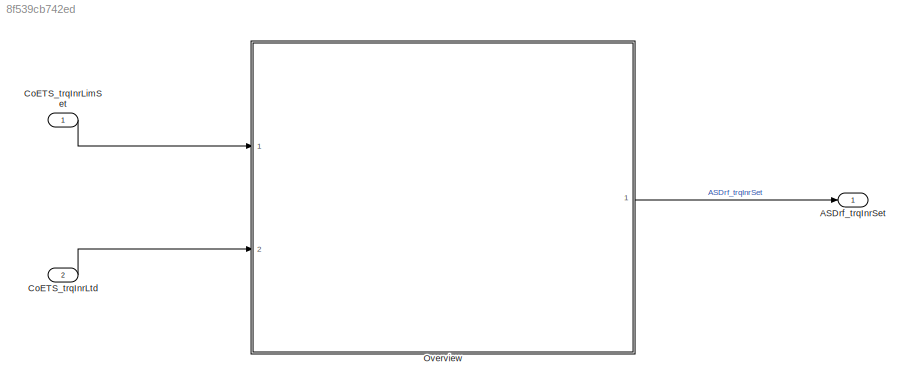
MODEL slx_8f539cb742ed
KIND model
CONFIG AbsTol = auto
CONFIG EnableMultiTasking = off
CONFIG FixedStep = 0.001
CONFIG MaxStep = auto
CONFIG MinStep = auto
CONFIG RelTol = 1e-3
CONFIG SampleTimeConstraint = Unconstrained
CONFIG Solver = FixedStepDiscrete
CONFIG SolverName = FixedStepDiscrete
CONFIG StartTime = 0.0
CONFIG StopTime = Inf
BLOCK [Outport] ASDrf_trqInrSet
  IconDisplay = Port number
BLOCK [Inport] CoETS_trqInrLimSet
  Description = Engine coordinator state
  IconDisplay = Port number
  OutDataTypeStr = Torq
  OutMax = 3000
  OutMin = -3000
  PortDimensions = [1 1]
BLOCK [Inport] CoETS_trqInrLtd
  Description = Vehicle speed
  IconDisplay = Port number
  OutDataTypeStr = Torq
  OutMax = 3000
  OutMin = -3000
  Port = 2
  PortDimensions = [1 1]
  Unit = km/h
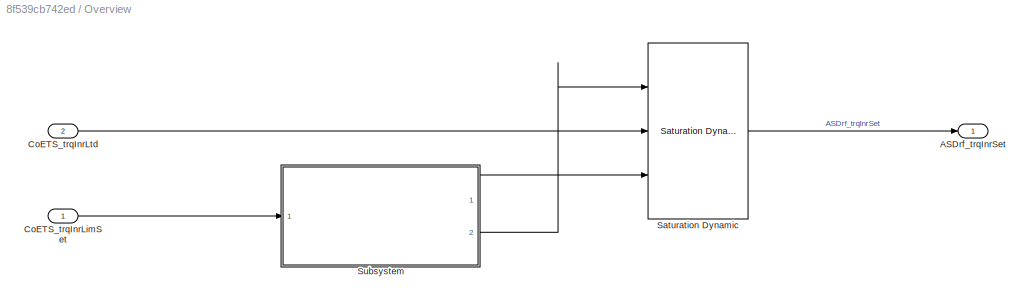
BLOCK [SubSystem] Overview
  Ports = [2, 1]
  RequestExecContextInheritance = off
BLOCK [Outport] Overview/ASDrf_trqInrSet
  Description = ASD reference filter torque output
  IconDisplay = Port number
  OutMax = 3000
  OutMin = -3000
  Tag = Nm
BLOCK [Inport] Overview/CoETS_trqInrLimSet
  Description = Limitation torque without the part of the speed governor
  IconDisplay = Port number
  OutMax = 3000
  OutMin = -3000
  Tag = Nm
BLOCK [Inport] Overview/CoETS_trqInrLtd
  Description = inner torque set value after limitation, before AS
  IconDisplay = Port number
  OutMax = 3000
  OutMin = -3000
  Port = 2
  Tag = Nm
BLOCK [Reference] Overview/Saturation Dynamic  REF=simulink/Discontinuities/Saturation
Dynamic
  Ports = [3, 1]
  SourceBlock = simulink/Discontinuities/Saturation\nDynamic
  SourceProductBaseCode = SL
  SourceProductName = Simulink
  SourceType = Saturation Dynamic
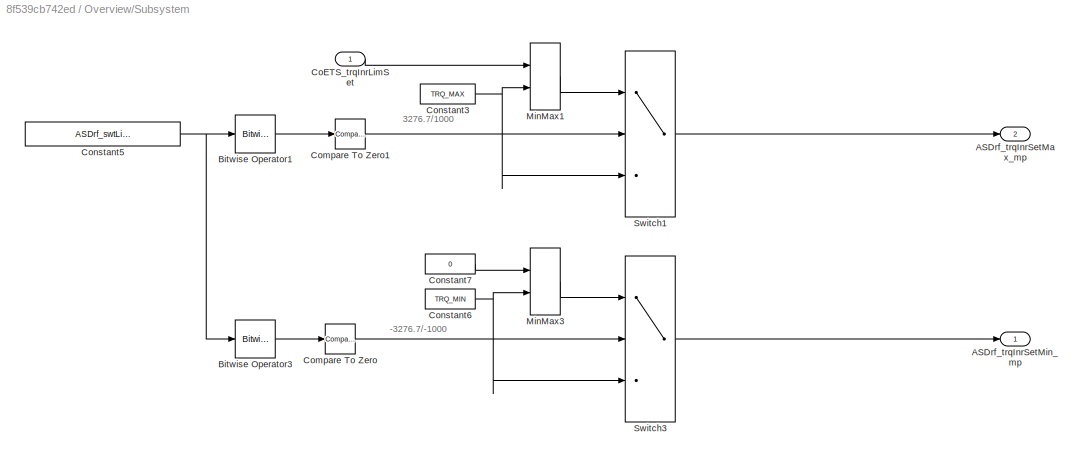
BLOCK [SubSystem] Overview/Subsystem
  Ports = [1, 2]
  RequestExecContextInheritance = off
BLOCK [Outport] Overview/Subsystem/ASDrf_trqInrSetMax_mp
  IconDisplay = Port number
  Port = 2
BLOCK [Outport] Overview/Subsystem/ASDrf_trqInrSetMin_mp
  IconDisplay = Port number
BLOCK [Reference] Overview/Subsystem/Bitwise Operator1  REF=simulink/Logic and Bit
Operations/Bitwise
Operator
  Ports = [1, 1]
  SourceBlock = simulink/Logic and Bit\nOperations/Bitwise\nOperator
  SourceProductBaseCode = SL
  SourceProductName = Simulink
  SourceType = Bitwise Operator
BLOCK [Reference] Overview/Subsystem/Bitwise Operator3  REF=simulink/Logic and Bit
Operations/Bitwise
Operator
  Ports = [1, 1]
  SourceBlock = simulink/Logic and Bit\nOperations/Bitwise\nOperator
  SourceProductBaseCode = SL
  SourceProductName = Simulink
  SourceType = Bitwise Operator
BLOCK [Inport] Overview/Subsystem/CoETS_trqInrLimSet
  IconDisplay = Port number
BLOCK [Reference] Overview/Subsystem/Compare To Zero  REF=simulink/Logic and Bit
Operations/Compare
To Zero
  Ports = [1, 1]
  SourceBlock = simulink/Logic and Bit\nOperations/Compare\nTo Zero
  SourceProductBaseCode = SL
  SourceProductName = Simulink
  SourceType = Compare To Zero
BLOCK [Reference] Overview/Subsystem/Compare To Zero1  REF=simulink/Logic and Bit
Operations/Compare
To Zero
  Ports = [1, 1]
  SourceBlock = simulink/Logic and Bit\nOperations/Compare\nTo Zero
  SourceProductBaseCode = SL
  SourceProductName = Simulink
  SourceType = Compare To Zero
BLOCK [Constant] Overview/Subsystem/Constant3
  OutDataTypeStr = Inherit: Inherit via back propagation
  Value = TRQ_MAX
BLOCK [Constant] Overview/Subsystem/Constant5
  SampleTime = -1
  Value = ASDrf_swtLim_C
BLOCK [Constant] Overview/Subsystem/Constant6
  OutDataTypeStr = Inherit: Inherit via back propagation
  Value = TRQ_MIN
BLOCK [Constant] Overview/Subsystem/Constant7
  OutDataTypeStr = Inherit: Inherit via back propagation
  Value = 0
BLOCK [MinMax] Overview/Subsystem/MinMax1
  Inputs = 2
  Ports = [2, 1]
  SaturateOnIntegerOverflow = off
BLOCK [MinMax] Overview/Subsystem/MinMax3
  Function = max
  Inputs = 2
  Ports = [2, 1]
BLOCK [Switch] Overview/Subsystem/Switch1
  Criteria = u2 ~= 0
  SaturateOnIntegerOverflow = off
BLOCK [Switch] Overview/Subsystem/Switch3
  Criteria = u2 ~= 0
  SaturateOnIntegerOverflow = off
ANNOTATION Overview/Subsystem: -3276.7/-1000
ANNOTATION Overview/Subsystem: 3276.7/1000
LINE CoETS_trqInrLimSet:1 -> Overview:1
LINE CoETS_trqInrLtd:1 -> Overview:2
LINE Overview/CoETS_trqInrLimSet:1 -> Overview/Subsystem:1
LINE Overview/CoETS_trqInrLtd:1 -> Overview/Saturation Dynamic:2
LINE Overview/Saturation Dynamic:1 -> Overview/ASDrf_trqInrSet:1
LINE Overview/Subsystem/Bitwise Operator1:1 -> Overview/Subsystem/Compare To Zero1:1
LINE Overview/Subsystem/Bitwise Operator3:1 -> Overview/Subsystem/Compare To Zero:1
LINE Overview/Subsystem/CoETS_trqInrLimSet:1 -> Overview/Subsystem/MinMax1:1
LINE Overview/Subsystem/Compare To Zero1:1 -> Overview/Subsystem/Switch1:2
LINE Overview/Subsystem/Compare To Zero:1 -> Overview/Subsystem/Switch3:2
NET Overview/Subsystem/Constant3:1 -> Overview/Subsystem/MinMax1:2, Overview/Subsystem/Switch1:3
NET Overview/Subsystem/Constant5:1 -> Overview/Subsystem/Bitwise Operator1:1, Overview/Subsystem/Bitwise Operator3:1
NET Overview/Subsystem/Constant6:1 -> Overview/Subsystem/MinMax3:2, Overview/Subsystem/Switch3:3
LINE Overview/Subsystem/Constant7:1 -> Overview/Subsystem/MinMax3:1
LINE Overview/Subsystem/MinMax1:1 -> Overview/Subsystem/Switch1:1
LINE Overview/Subsystem/MinMax3:1 -> Overview/Subsystem/Switch3:1
LINE Overview/Subsystem/Switch1:1 -> Overview/Subsystem/ASDrf_trqInrSetMax_mp:1
LINE Overview/Subsystem/Switch3:1 -> Overview/Subsystem/ASDrf_trqInrSetMin_mp:1
LINE Overview/Subsystem:1 -> Overview/Saturation Dynamic:3
LINE Overview/Subsystem:2 -> Overview/Saturation Dynamic:1
LINE Overview:1 -> ASDrf_trqInrSet:1
note: NET lines group one-source signal fan-out (src -> all destinations, sorted); 1:1 wires keep LINE
